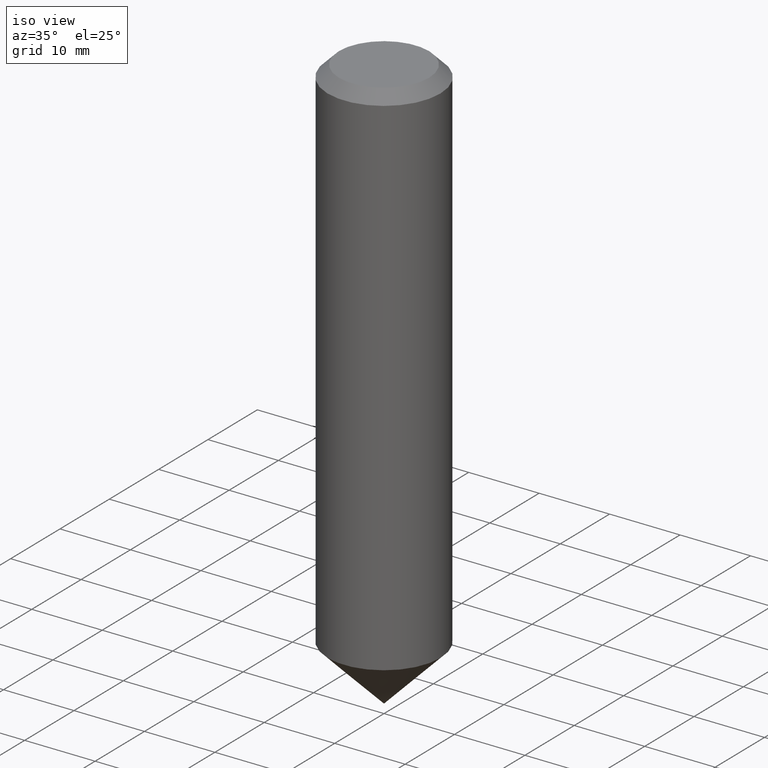
[diagram: clean part render]
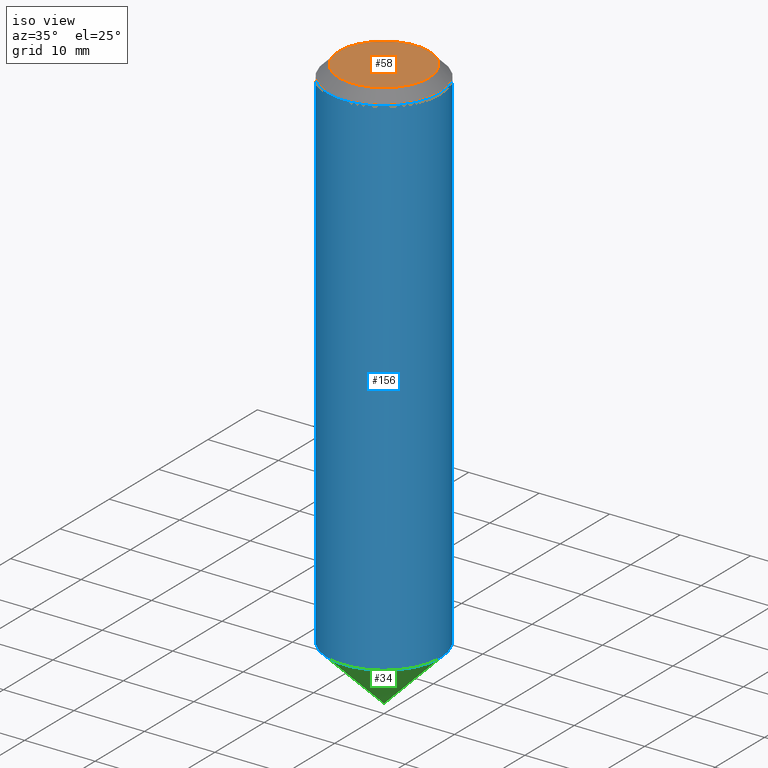
[diagram: same view with three faces highlighted in distinct colors, each labeled with its STEP entity id]
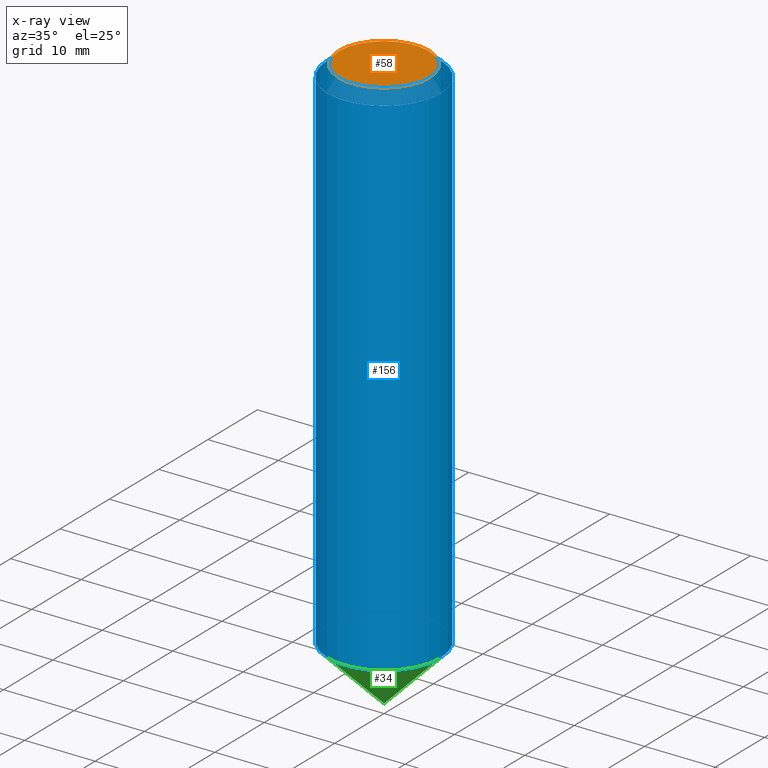
[diagram: x-ray of the same camera — body ghosted, the three highlighted faces saturated]
A machine part, iso view with three faces highlighted in distinct colors.
The next image is the same camera in x-ray (body ghosted, the three faces saturated) — at least one of them is partly hidden behind the body in this view.
Their STEP definitions:

[orange] entity #58 — the highlighted planar face has unit normal (-0, 0, -1).
#44 = DIRECTION ( 'NONE',  ( -1.000000000000000000, 0.0000000000000000000, 6.982962677686267499E-15 ) ) ;
#58 = ADVANCED_FACE ( 'NONE', ( #157 ), #113, .F. ) ;
#62 = AXIS2_PLACEMENT_3D ( 'NONE', #80, #108, #44 ) ;
#80 = CARTESIAN_POINT ( 'NONE',  ( 0.0000000000000000000, 0.0000000000000000000, 0.0000000000000000000 ) ) ;
#106 = AXIS2_PLACEMENT_3D ( 'NONE', #147, #134, #121 ) ;
#107 = ORIENTED_EDGE ( 'NONE', *, *, #174, .F. ) ;
#108 = DIRECTION ( 'NONE',  ( -6.982962677686266711E-15, 0.0000000000000000000, -1.000000000000000000 ) ) ;
#110 = CIRCLE ( 'NONE', #62, 6.399999999999994138 ) ;
#113 = PLANE ( 'NONE',  #106 ) ;
#121 = DIRECTION ( 'NONE',  ( -1.000000000000000000, 0.0000000000000000000, 6.982962677686266711E-15 ) ) ;
#132 = VERTEX_POINT ( 'NONE', #135 ) ;
#134 = DIRECTION ( 'NONE',  ( -6.982962677686266711E-15, 0.0000000000000000000, -1.000000000000000000 ) ) ;
#135 = CARTESIAN_POINT ( 'NONE',  ( -6.399999999999994138, 0.0000000000000000000, 4.469096113719206908E-14 ) ) ;
#147 = CARTESIAN_POINT ( 'NONE',  ( -3.111405660445696787E-30, 0.0000000000000000000, -4.455709995970691549E-16 ) ) ;
#157 = FACE_OUTER_BOUND ( 'NONE', #169, .T. ) ;
#169 = EDGE_LOOP ( 'NONE', ( #107 ) ) ;
#174 = EDGE_CURVE ( 'NONE', #132, #132, #110, .T. ) ;

[blue] entity #156 — the highlighted cylindrical surface (bore or boss wall) has radius 8 mm, axis along (-0, 0, -1).
#3 = VERTEX_POINT ( 'NONE', #63 ) ;
#10 = CYLINDRICAL_SURFACE ( 'NONE', #178, 7.999999999999996447 ) ;
#11 = CIRCLE ( 'NONE', #98, 7.999999999999996447 ) ;
#15 = VERTEX_POINT ( 'NONE', #66 ) ;
#29 = FACE_OUTER_BOUND ( 'NONE', #141, .T. ) ;
#30 = DIRECTION ( 'NONE',  ( 1.000000000000000000, 0.0000000000000000000, -6.938893903907231533E-15 ) ) ;
#40 = EDGE_LOOP ( 'NONE', ( #54 ) ) ;
#54 = ORIENTED_EDGE ( 'NONE', *, *, #142, .F. ) ;
#59 = DIRECTION ( 'NONE',  ( -1.000000000000000000, 0.0000000000000000000, 6.993104012531503599E-15 ) ) ;
#63 = CARTESIAN_POINT ( 'NONE',  ( 7.999999999999479527, 0.0000000000000000000, -74.00000000000009948 ) ) ;
#66 = CARTESIAN_POINT ( 'NONE',  ( -8.000000000000010658, 0.0000000000000000000, -1.599999999999948352 ) ) ;
#72 = ORIENTED_EDGE ( 'NONE', *, *, #125, .T. ) ;
#77 = FACE_OUTER_BOUND ( 'NONE', #40, .T. ) ;
#91 = CIRCLE ( 'NONE', #148, 8.000000000000000000 ) ;
#93 = CARTESIAN_POINT ( 'NONE',  ( -1.117274028429805514E-14, 0.0000000000000000000, -1.600000000000004086 ) ) ;
#94 = DIRECTION ( 'NONE',  ( -1.000000000000000000, 0.0000000000000000000, 6.938893903907231533E-15 ) ) ;
#96 = CARTESIAN_POINT ( 'NONE',  ( -5.726029395702739208E-13, 0.0000000000000000000, -82.00000000000000000 ) ) ;
#97 = DIRECTION ( 'NONE',  ( -6.982962677686266711E-15, 0.0000000000000000000, -1.000000000000000000 ) ) ;
#98 = AXIS2_PLACEMENT_3D ( 'NONE', #144, #159, #30 ) ;
#111 = DIRECTION ( 'NONE',  ( -6.982962677686266711E-15, 0.0000000000000000000, -1.000000000000000000 ) ) ;
#125 = EDGE_CURVE ( 'NONE', #15, #15, #91, .T. ) ;
#141 = EDGE_LOOP ( 'NONE', ( #72 ) ) ;
#142 = EDGE_CURVE ( 'NONE', #3, #3, #11, .T. ) ;
#144 = CARTESIAN_POINT ( 'NONE',  ( -5.167392381487839890E-13, 0.0000000000000000000, -74.00000000000004263 ) ) ;
#148 = AXIS2_PLACEMENT_3D ( 'NONE', #93, #111, #59 ) ;
#156 = ADVANCED_FACE ( 'NONE', ( #29, #77 ), #10, .T. ) ;
#159 = DIRECTION ( 'NONE',  ( -6.982962677686266711E-15, -0.0000000000000000000, -1.000000000000000000 ) ) ;
#178 = AXIS2_PLACEMENT_3D ( 'NONE', #96, #97, #94 ) ;

[green] entity #34 — the highlighted conical surface has half-angle 45 deg.
#17 = CIRCLE ( 'NONE', #109, 7.999999999999996447 ) ;
#18 = DIRECTION ( 'NONE',  ( -6.982962677686266711E-15, -0.0000000000000000000, -1.000000000000000000 ) ) ;
#28 = DIRECTION ( 'NONE',  ( 1.000000000000000000, 0.0000000000000000000, -6.938893903907231533E-15 ) ) ;
#34 = ADVANCED_FACE ( 'NONE', ( #75 ), #53, .T. ) ;
#39 = EDGE_LOOP ( 'NONE', ( #154 ) ) ;
#53 = CONICAL_SURFACE ( 'NONE', #177, 1000.000000000002842, 0.7853981633974498333 ) ;
#56 = DIRECTION ( 'NONE',  ( 6.982962677686266711E-15, 0.0000000000000000000, 1.000000000000000000 ) ) ;
#70 = EDGE_CURVE ( 'NONE', #122, #122, #17, .T. ) ;
#75 = FACE_OUTER_BOUND ( 'NONE', #39, .T. ) ;
#95 = CARTESIAN_POINT ( 'NONE',  ( -5.167392381487839890E-13, 0.0000000000000000000, -74.00000000000004263 ) ) ;
#109 = AXIS2_PLACEMENT_3D ( 'NONE', #95, #18, #28 ) ;
#120 = DIRECTION ( 'NONE',  ( 1.000000000000000000, 0.0000000000000000000, -6.994405055138466483E-15 ) ) ;
#122 = VERTEX_POINT ( 'NONE', #146 ) ;
#146 = CARTESIAN_POINT ( 'NONE',  ( 7.999999999999479527, 0.0000000000000000000, -74.00000000000009948 ) ) ;
#154 = ORIENTED_EDGE ( 'NONE', *, *, #70, .T. ) ;
#177 = AXIS2_PLACEMENT_3D ( 'NONE', #183, #56, #120 ) ;
#183 = CARTESIAN_POINT ( 'NONE',  ( 6.410359738115992689E-12, 0.0000000000000000000, 918.0000000000000000 ) ) ;